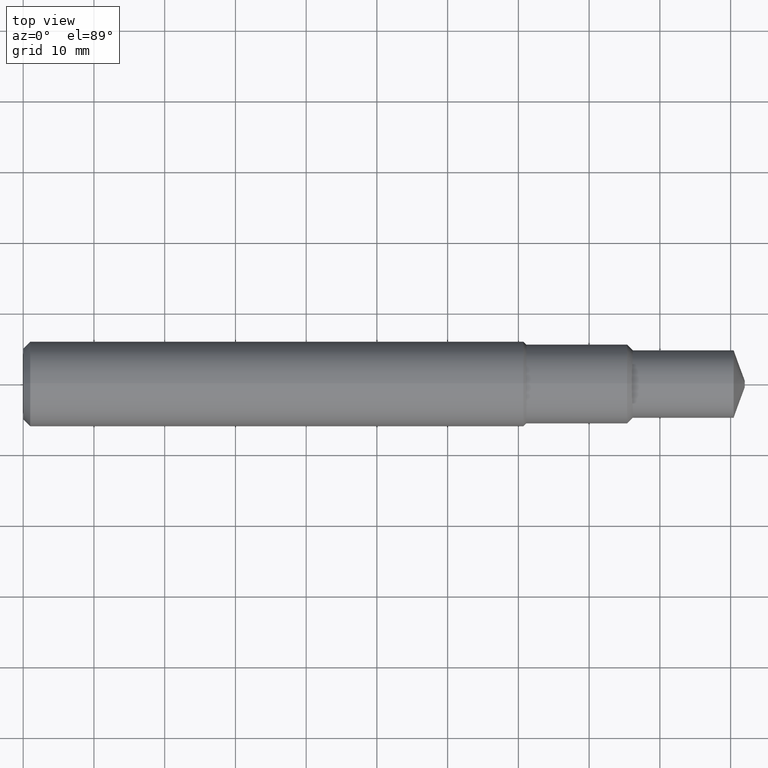
[diagram: clean part render]
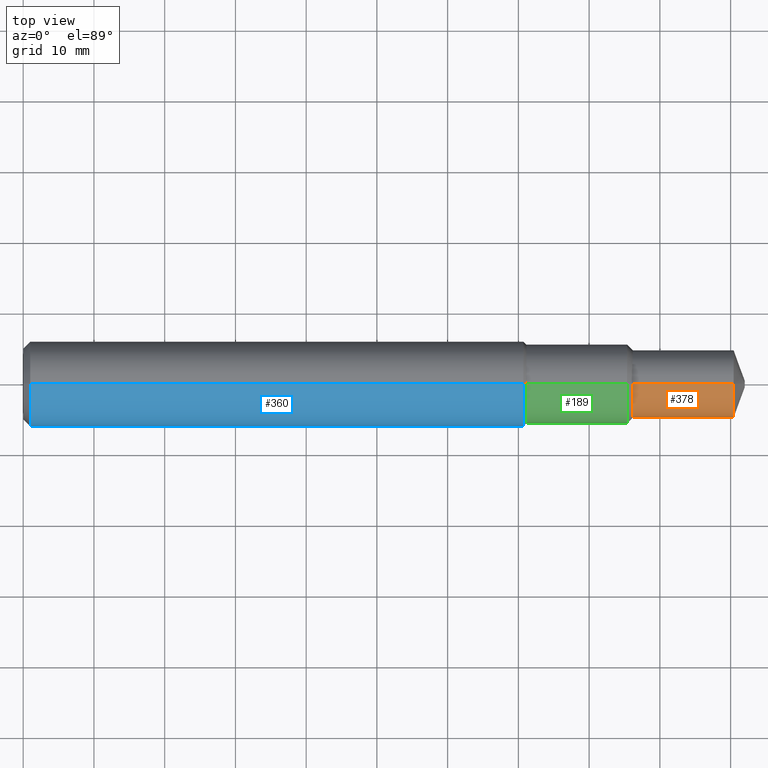
[diagram: same view with three faces highlighted in distinct colors, each labeled with its STEP entity id]
A machine part, top view with three faces highlighted in distinct colors.
Their STEP definitions:

[orange] entity #378 — the highlighted cylindrical surface (edge-blend (fillet) strip) has radius 4.7879 mm, axis along (1, -0, -0).
#11 = AXIS2_PLACEMENT_3D ( 'NONE', #205, #328, #178 ) ;
#30 = FACE_OUTER_BOUND ( 'NONE', #364, .T. ) ;
#32 = EDGE_CURVE ( 'NONE', #438, #217, #83, .T. ) ;
#77 = VECTOR ( 'NONE', #246, 39.37007874015748143 ) ;
#81 = DIRECTION ( 'NONE',  ( 1.000000000000000000, -0.000000000000000000, -0.000000000000000000 ) ) ;
#83 = CIRCLE ( 'NONE', #202, 0.1885000000000004172 ) ;
#107 = ORIENTED_EDGE ( 'NONE', *, *, #191, .F. ) ;
#122 = ORIENTED_EDGE ( 'NONE', *, *, #32, .T. ) ;
#128 = CARTESIAN_POINT ( 'NONE',  ( 3.953761089940480034, 0.000000000000000000, 0.000000000000000000 ) ) ;
#161 = DIRECTION ( 'NONE',  ( 1.000000000000000000, -0.000000000000000000, -0.000000000000000000 ) ) ;
#169 = CARTESIAN_POINT ( 'NONE',  ( -0.03808593750000075634, 2.308459216392766469E-17, 0.1885000000000004727 ) ) ;
#172 = EDGE_CURVE ( 'NONE', #217, #468, #192, .T. ) ;
#178 = DIRECTION ( 'NONE',  ( 0.000000000000000000, 0.000000000000000000, -1.000000000000000000 ) ) ;
#191 = EDGE_CURVE ( 'NONE', #424, #468, #344, .T. ) ;
#192 = LINE ( 'NONE', #193, #433 ) ;
#193 = CARTESIAN_POINT ( 'NONE',  ( -0.03808593750000075634, 0.000000000000000000, -0.1885000000000004727 ) ) ;
#202 = AXIS2_PLACEMENT_3D ( 'NONE', #452, #81, #415 ) ;
#205 = CARTESIAN_POINT ( 'NONE',  ( -0.03808593750000075634, 0.000000000000000000, 0.000000000000000000 ) ) ;
#208 = AXIS2_PLACEMENT_3D ( 'NONE', #128, #161, #346 ) ;
#215 = CARTESIAN_POINT ( 'NONE',  ( 3.392761089940480090, 2.308459216392766161E-17, 0.1885000000000004172 ) ) ;
#217 = VERTEX_POINT ( 'NONE', #387 ) ;
#245 = ORIENTED_EDGE ( 'NONE', *, *, #443, .F. ) ;
#246 = DIRECTION ( 'NONE',  ( 1.000000000000000000, -0.000000000000000000, -0.000000000000000000 ) ) ;
#251 = CYLINDRICAL_SURFACE ( 'NONE', #11, 0.1885000000000004727 ) ;
#267 = ORIENTED_EDGE ( 'NONE', *, *, #172, .T. ) ;
#282 = CARTESIAN_POINT ( 'NONE',  ( 3.953761089940480034, 0.000000000000000000, 0.1885000000000005560 ) ) ;
#328 = DIRECTION ( 'NONE',  ( 1.000000000000000000, -0.000000000000000000, -0.000000000000000000 ) ) ;
#344 = CIRCLE ( 'NONE', #208, 0.1885000000000005282 ) ;
#346 = DIRECTION ( 'NONE',  ( 0.000000000000000000, 0.000000000000000000, -1.000000000000000000 ) ) ;
#364 = EDGE_LOOP ( 'NONE', ( #245, #122, #267, #107 ) ) ;
#378 = ADVANCED_FACE ( 'NONE', ( #30 ), #251, .T. ) ;
#387 = CARTESIAN_POINT ( 'NONE',  ( 3.392761089940480090, 0.000000000000000000, -0.1885000000000004172 ) ) ;
#400 = CARTESIAN_POINT ( 'NONE',  ( 3.953761089940480034, 2.308459216392768010E-17, -0.1885000000000005560 ) ) ;
#411 = DIRECTION ( 'NONE',  ( 1.000000000000000000, -0.000000000000000000, -0.000000000000000000 ) ) ;
#415 = DIRECTION ( 'NONE',  ( 0.000000000000000000, 0.000000000000000000, -1.000000000000000000 ) ) ;
#424 = VERTEX_POINT ( 'NONE', #282 ) ;
#433 = VECTOR ( 'NONE', #411, 39.37007874015748143 ) ;
#438 = VERTEX_POINT ( 'NONE', #215 ) ;
#443 = EDGE_CURVE ( 'NONE', #438, #424, #474, .T. ) ;
#452 = CARTESIAN_POINT ( 'NONE',  ( 3.392761089940480090, 0.000000000000000000, 0.000000000000000000 ) ) ;
#468 = VERTEX_POINT ( 'NONE', #400 ) ;
#474 = LINE ( 'NONE', #169, #77 ) ;

[blue] entity #360 — the highlighted cylindrical surface (partial cylindrical patch) has radius 6 mm, axis along (1, -0, -0).
#12 = LINE ( 'NONE', #420, #131 ) ;
#20 = DIRECTION ( 'NONE',  ( 1.000000000000000000, -0.000000000000000000, -0.000000000000000000 ) ) ;
#27 = FACE_OUTER_BOUND ( 'NONE', #478, .T. ) ;
#33 = CARTESIAN_POINT ( 'NONE',  ( -0.03808593750000075634, 0.000000000000000000, 0.000000000000000000 ) ) ;
#55 = DIRECTION ( 'NONE',  ( 1.000000000000000000, -0.000000000000000000, -0.000000000000000000 ) ) ;
#58 = LINE ( 'NONE', #350, #463 ) ;
#74 = VERTEX_POINT ( 'NONE', #371 ) ;
#86 = EDGE_CURVE ( 'NONE', #212, #74, #337, .T. ) ;
#90 = CARTESIAN_POINT ( 'NONE',  ( 0.03937007874015747977, 2.892866454678788147E-17, 0.2362204724409449064 ) ) ;
#129 = DIRECTION ( 'NONE',  ( 1.000000000000000000, -0.000000000000000000, -0.000000000000000000 ) ) ;
#131 = VECTOR ( 'NONE', #129, 39.37007874015748143 ) ;
#177 = VERTEX_POINT ( 'NONE', #380 ) ;
#181 = AXIS2_PLACEMENT_3D ( 'NONE', #33, #465, #242 ) ;
#188 = AXIS2_PLACEMENT_3D ( 'NONE', #427, #20, #390 ) ;
#200 = EDGE_CURVE ( 'NONE', #177, #74, #12, .T. ) ;
#212 = VERTEX_POINT ( 'NONE', #272 ) ;
#236 = EDGE_CURVE ( 'NONE', #278, #212, #58, .T. ) ;
#242 = DIRECTION ( 'NONE',  ( 0.000000000000000000, 0.000000000000000000, -1.000000000000000000 ) ) ;
#253 = ORIENTED_EDGE ( 'NONE', *, *, #236, .F. ) ;
#265 = DIRECTION ( 'NONE',  ( 1.000000000000000000, -0.000000000000000000, -0.000000000000000000 ) ) ;
#272 = CARTESIAN_POINT ( 'NONE',  ( 2.784040617499535131, 0.000000000000000000, 0.2362204724409452394 ) ) ;
#273 = EDGE_CURVE ( 'NONE', #278, #177, #395, .T. ) ;
#278 = VERTEX_POINT ( 'NONE', #90 ) ;
#286 = ORIENTED_EDGE ( 'NONE', *, *, #86, .F. ) ;
#300 = DIRECTION ( 'NONE',  ( 0.000000000000000000, 0.000000000000000000, -1.000000000000000000 ) ) ;
#301 = CARTESIAN_POINT ( 'NONE',  ( 2.784040617499535131, 0.000000000000000000, 0.000000000000000000 ) ) ;
#337 = CIRCLE ( 'NONE', #366, 0.2362204724409452394 ) ;
#350 = CARTESIAN_POINT ( 'NONE',  ( -0.03808593750000075634, 2.892866454678789379E-17, 0.2362204724409450729 ) ) ;
#360 = ADVANCED_FACE ( 'NONE', ( #27 ), #392, .T. ) ;
#366 = AXIS2_PLACEMENT_3D ( 'NONE', #301, #265, #300 ) ;
#371 = CARTESIAN_POINT ( 'NONE',  ( 2.784040617499535131, 2.892866454678791228E-17, -0.2362204724409452394 ) ) ;
#380 = CARTESIAN_POINT ( 'NONE',  ( 0.03937007874015747977, 0.000000000000000000, -0.2362204724409449064 ) ) ;
#390 = DIRECTION ( 'NONE',  ( 0.000000000000000000, 0.000000000000000000, -1.000000000000000000 ) ) ;
#391 = ORIENTED_EDGE ( 'NONE', *, *, #273, .T. ) ;
#392 = CYLINDRICAL_SURFACE ( 'NONE', #181, 0.2362204724409450729 ) ;
#395 = CIRCLE ( 'NONE', #188, 0.2362204724409449064 ) ;
#420 = CARTESIAN_POINT ( 'NONE',  ( -0.03808593750000075634, 0.000000000000000000, -0.2362204724409450729 ) ) ;
#427 = CARTESIAN_POINT ( 'NONE',  ( 0.03937007874015747977, 0.000000000000000000, 0.000000000000000000 ) ) ;
#432 = ORIENTED_EDGE ( 'NONE', *, *, #200, .T. ) ;
#463 = VECTOR ( 'NONE', #55, 39.37007874015748143 ) ;
#465 = DIRECTION ( 'NONE',  ( 1.000000000000000000, -0.000000000000000000, -0.000000000000000000 ) ) ;
#478 = EDGE_LOOP ( 'NONE', ( #253, #391, #432, #286 ) ) ;

[green] entity #189 — the highlighted cylindrical surface (partial cylindrical patch) has radius 5.588 mm, axis along (1, -0, -0).
#5 = CIRCLE ( 'NONE', #398, 0.2200000000000003897 ) ;
#9 = CARTESIAN_POINT ( 'NONE',  ( -0.03808593750000075634, 0.000000000000000000, -0.2200000000000003897 ) ) ;
#15 = EDGE_CURVE ( 'NONE', #319, #38, #19, .T. ) ;
#17 = EDGE_CURVE ( 'NONE', #88, #38, #153, .T. ) ;
#18 = VERTEX_POINT ( 'NONE', #157 ) ;
#19 = CIRCLE ( 'NONE', #304, 0.2200000000000004174 ) ;
#22 = DIRECTION ( 'NONE',  ( 0.000000000000000000, 0.000000000000000000, -1.000000000000000000 ) ) ;
#38 = VERTEX_POINT ( 'NONE', #306 ) ;
#45 = DIRECTION ( 'NONE',  ( 1.000000000000000000, -0.000000000000000000, -0.000000000000000000 ) ) ;
#46 = CARTESIAN_POINT ( 'NONE',  ( 2.800261089940479842, 0.000000000000000000, -0.2200000000000003897 ) ) ;
#48 = VECTOR ( 'NONE', #195, 39.37007874015748143 ) ;
#50 = CARTESIAN_POINT ( 'NONE',  ( -0.03808593750000075634, 0.000000000000000000, 0.000000000000000000 ) ) ;
#71 = AXIS2_PLACEMENT_3D ( 'NONE', #50, #199, #345 ) ;
#78 = CARTESIAN_POINT ( 'NONE',  ( 3.361261089940479785, 0.000000000000000000, 0.000000000000000000 ) ) ;
#88 = VERTEX_POINT ( 'NONE', #46 ) ;
#89 = FACE_OUTER_BOUND ( 'NONE', #94, .T. ) ;
#94 = EDGE_LOOP ( 'NONE', ( #351, #203, #315, #126 ) ) ;
#114 = EDGE_CURVE ( 'NONE', #18, #319, #343, .T. ) ;
#126 = ORIENTED_EDGE ( 'NONE', *, *, #15, .F. ) ;
#153 = LINE ( 'NONE', #9, #48 ) ;
#157 = CARTESIAN_POINT ( 'NONE',  ( 2.800261089940479842, 2.694222958124181567E-17, 0.2200000000000003897 ) ) ;
#189 = ADVANCED_FACE ( 'NONE', ( #89 ), #428, .T. ) ;
#195 = DIRECTION ( 'NONE',  ( 1.000000000000000000, -0.000000000000000000, -0.000000000000000000 ) ) ;
#199 = DIRECTION ( 'NONE',  ( 1.000000000000000000, -0.000000000000000000, -0.000000000000000000 ) ) ;
#203 = ORIENTED_EDGE ( 'NONE', *, *, #409, .T. ) ;
#211 = CARTESIAN_POINT ( 'NONE',  ( 2.800261089940479842, 0.000000000000000000, 0.000000000000000000 ) ) ;
#225 = DIRECTION ( 'NONE',  ( 0.000000000000000000, 0.000000000000000000, -1.000000000000000000 ) ) ;
#280 = VECTOR ( 'NONE', #45, 39.37007874015748143 ) ;
#303 = CARTESIAN_POINT ( 'NONE',  ( -0.03808593750000075634, 2.694222958124181567E-17, 0.2200000000000003897 ) ) ;
#304 = AXIS2_PLACEMENT_3D ( 'NONE', #78, #441, #225 ) ;
#306 = CARTESIAN_POINT ( 'NONE',  ( 3.361261089940479785, 2.694222958124182492E-17, -0.2200000000000004174 ) ) ;
#315 = ORIENTED_EDGE ( 'NONE', *, *, #17, .T. ) ;
#319 = VERTEX_POINT ( 'NONE', #422 ) ;
#324 = DIRECTION ( 'NONE',  ( 1.000000000000000000, -0.000000000000000000, -0.000000000000000000 ) ) ;
#343 = LINE ( 'NONE', #303, #280 ) ;
#345 = DIRECTION ( 'NONE',  ( 0.000000000000000000, 0.000000000000000000, -1.000000000000000000 ) ) ;
#351 = ORIENTED_EDGE ( 'NONE', *, *, #114, .F. ) ;
#398 = AXIS2_PLACEMENT_3D ( 'NONE', #211, #324, #22 ) ;
#409 = EDGE_CURVE ( 'NONE', #18, #88, #5, .T. ) ;
#422 = CARTESIAN_POINT ( 'NONE',  ( 3.361261089940479785, 0.000000000000000000, 0.2200000000000004174 ) ) ;
#428 = CYLINDRICAL_SURFACE ( 'NONE', #71, 0.2200000000000003897 ) ;
#441 = DIRECTION ( 'NONE',  ( 1.000000000000000000, -0.000000000000000000, -0.000000000000000000 ) ) ;